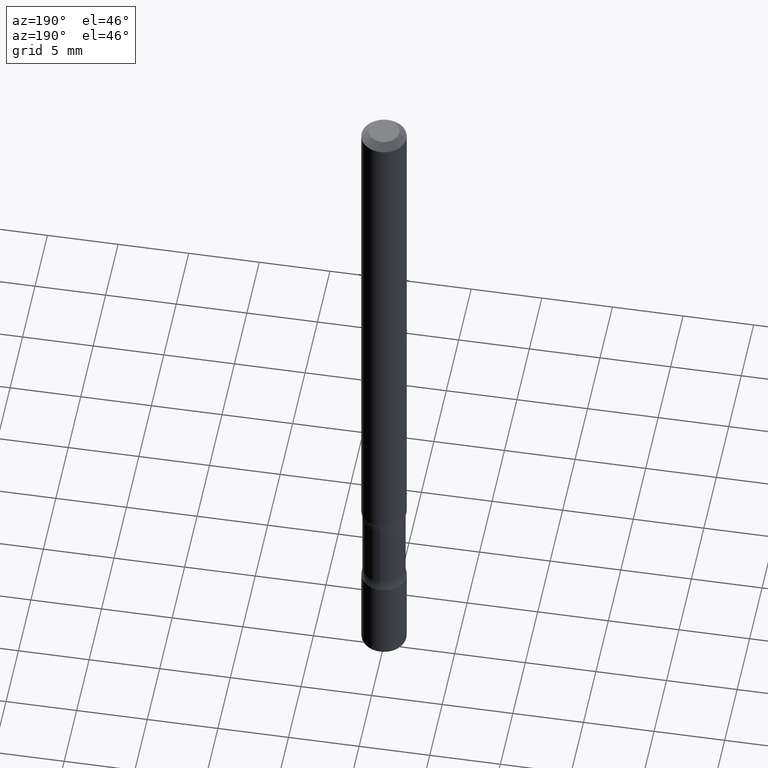
[diagram: clean part render]
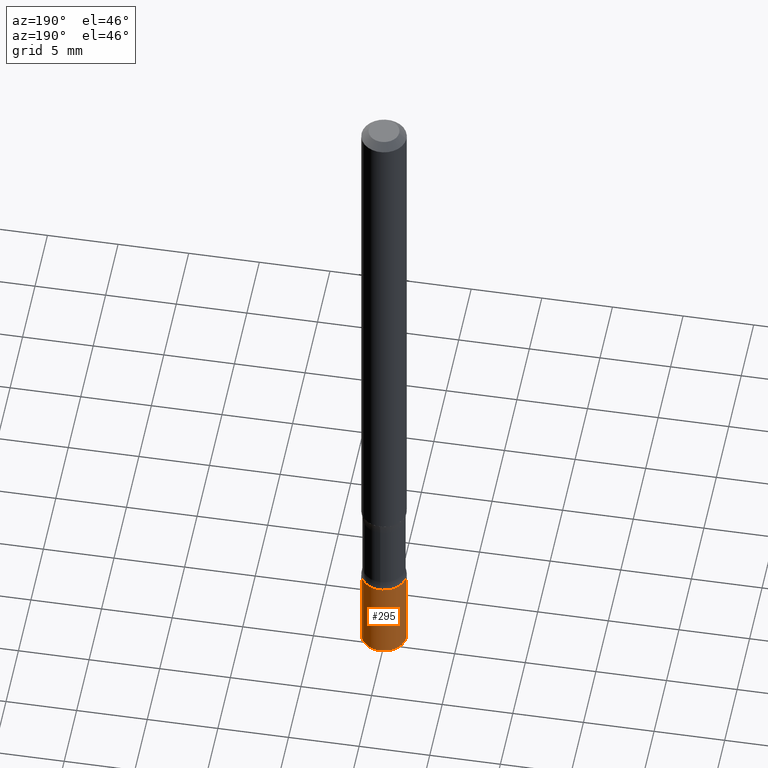
[diagram: same view with one face highlighted and labeled with its STEP entity id]
A machine part, auxiliary view. The second image highlights one B-rep face of the part: STEP entity #295.
In plain terms, the highlighted cylindrical surface (edge-blend (fillet) strip) has radius 1.5875 mm, axis along (-0, 0, 1).
Its self-contained STEP definition (entity closure, byte-faithful):
#3 = CARTESIAN_POINT ( 'NONE',  ( -0.06250000000000076328, 4.440892098500680396E-16, -3.074334431409353598E-30 ) ) ;
#4 = VECTOR ( 'NONE', #7, 39.37007874015748143 ) ;
#7 = DIRECTION ( 'NONE',  ( -2.445468806185136877E-29, 3.491481338843145188E-15, 1.000000000000000000 ) ) ;
#53 = DIRECTION ( 'NONE',  ( 1.000000000000000000, -6.982962677686271444E-15, 0.000000000000000000 ) ) ;
#57 = DIRECTION ( 'NONE',  ( 1.000000000000000000, -6.982962677686270655E-15, 0.000000000000000000 ) ) ;
#87 = LINE ( 'NONE', #3, #4 ) ;
#88 = VERTEX_POINT ( 'NONE', #523 ) ;
#98 = CARTESIAN_POINT ( 'NONE',  ( 4.866482924308417164E-29, -6.948047864297853205E-15, -1.989999999999998215 ) ) ;
#103 = VERTEX_POINT ( 'NONE', #389 ) ;
#125 = ORIENTED_EDGE ( 'NONE', *, *, #507, .F. ) ;
#220 = AXIS2_PLACEMENT_3D ( 'NONE', #98, #447, #57 ) ;
#223 = CARTESIAN_POINT ( 'NONE',  ( 0.06250000000000076328, -4.364351673553969942E-16, 3.047610484872497355E-30 ) ) ;
#259 = ORIENTED_EDGE ( 'NONE', *, *, #342, .T. ) ;
#295 = ADVANCED_FACE ( 'NONE', ( #528 ), #558, .T. ) ;
#310 = DIRECTION ( 'NONE',  ( -2.445468806185136597E-29, 3.491481338843145583E-15, 1.000000000000000000 ) ) ;
#322 = EDGE_CURVE ( 'NONE', #103, #88, #480, .T. ) ;
#323 = ORIENTED_EDGE ( 'NONE', *, *, #322, .F. ) ;
#341 = DIRECTION ( 'NONE',  ( -2.445468806185136877E-29, 3.491481338843145188E-15, 1.000000000000000000 ) ) ;
#342 = EDGE_CURVE ( 'NONE', #347, #88, #87, .T. ) ;
#347 = VERTEX_POINT ( 'NONE', #484 ) ;
#350 = EDGE_LOOP ( 'NONE', ( #538, #259, #323, #125 ) ) ;
#364 = LINE ( 'NONE', #223, #431 ) ;
#371 = CARTESIAN_POINT ( 'NONE',  ( 0.06250000000000111022, -7.384483031653253552E-15, -1.989999999999998215 ) ) ;
#379 = AXIS2_PLACEMENT_3D ( 'NONE', #433, #476, #555 ) ;
#389 = CARTESIAN_POINT ( 'NONE',  ( 0.06250000000000062450, -6.546527510330897918E-15, -1.749999999999999112 ) ) ;
#431 = VECTOR ( 'NONE', #341, 39.37007874015748143 ) ;
#433 = CARTESIAN_POINT ( 'NONE',  ( 0.000000000000000000, 0.000000000000000000, 0.000000000000000000 ) ) ;
#443 = CARTESIAN_POINT ( 'NONE',  ( 4.279570410823987363E-29, -6.110092342975501516E-15, -1.749999999999999112 ) ) ;
#444 = CIRCLE ( 'NONE', #220, 0.06250000000000090206 ) ;
#447 = DIRECTION ( 'NONE',  ( -2.445468806185136597E-29, 3.491481338843145583E-15, 1.000000000000000000 ) ) ;
#459 = AXIS2_PLACEMENT_3D ( 'NONE', #443, #310, #53 ) ;
#476 = DIRECTION ( 'NONE',  ( -2.445468806185136597E-29, 3.491481338843145583E-15, 1.000000000000000000 ) ) ;
#479 = VERTEX_POINT ( 'NONE', #371 ) ;
#480 = CIRCLE ( 'NONE', #459, 0.06250000000000062450 ) ;
#484 = CARTESIAN_POINT ( 'NONE',  ( -0.06250000000000111022, -6.503958654447783489E-15, -1.989999999999998215 ) ) ;
#495 = EDGE_CURVE ( 'NONE', #479, #347, #444, .T. ) ;
#507 = EDGE_CURVE ( 'NONE', #479, #103, #364, .T. ) ;
#523 = CARTESIAN_POINT ( 'NONE',  ( -0.06250000000000062450, -6.084980893786609222E-15, -1.749999999999999112 ) ) ;
#528 = FACE_OUTER_BOUND ( 'NONE', #350, .T. ) ;
#538 = ORIENTED_EDGE ( 'NONE', *, *, #495, .T. ) ;
#555 = DIRECTION ( 'NONE',  ( 1.000000000000000000, -6.982962677686266711E-15, 4.876176775795936353E-29 ) ) ;
#558 = CYLINDRICAL_SURFACE ( 'NONE', #379, 0.06250000000000076328 ) ;